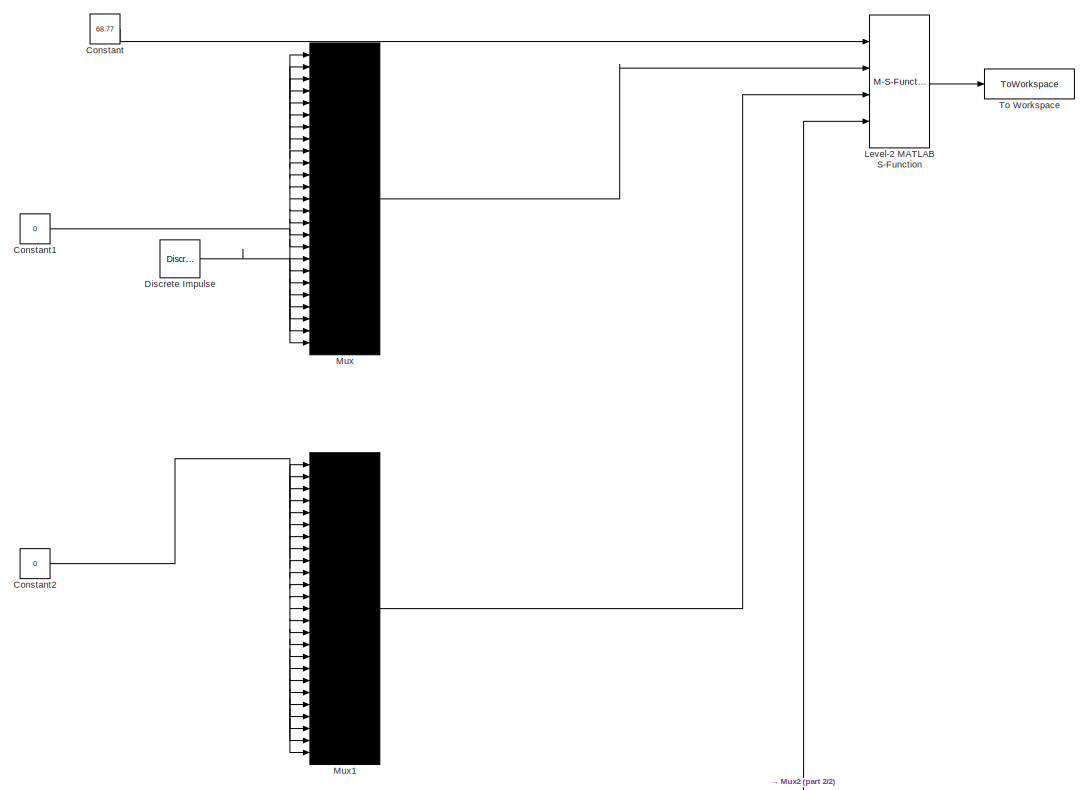
[diagram: root canvas - part 1/2, full width, middle band]
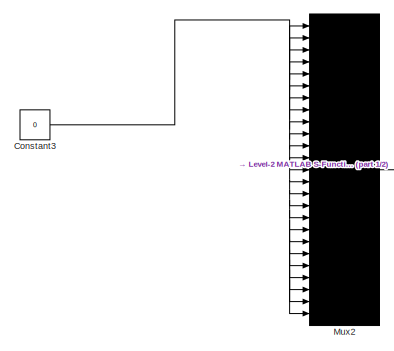
[diagram: root canvas - part 2/2, bottom left region]
MODEL slx_36253713f525
KIND model
CONFIG AbsTol = auto
CONFIG EnableMultiTasking = off
CONFIG FixedStep = auto
CONFIG MaxStep = auto
CONFIG MinStep = auto
CONFIG RelTol = 1e-3
CONFIG SampleTimeConstraint = Unconstrained
CONFIG Solver = VariableStepAuto
CONFIG SolverName = VariableStepAuto
CONFIG StartTime = 0.0
CONFIG StopTime = 10
BLOCK [Constant] Constant
  Value = 68.77
BLOCK [Constant] Constant1
  Value = 0
BLOCK [Constant] Constant2
  Value = 0
BLOCK [Constant] Constant3
  Value = 0
BLOCK [Reference] Discrete Impulse  REF=dspsrcs4/Discrete 
Impulse
  Ports = [0, 1]
  SourceBlock = dspsrcs4/Discrete \nImpulse
  SourceProductBaseCode = DS
  SourceProductName = DSP System Toolbox
  SourceType = Discrete Impulse
BLOCK [M-S-Function] Level-2 MATLAB S-Function
  FunctionName = corde2
  Parameters = 0.00325, 0.44, 0
  Ports = [4, 1]
BLOCK [Mux] Mux
  DisplayOption = bar
  Inputs = 25
  Ports = [25, 1]
BLOCK [Mux] Mux1
  DisplayOption = bar
  Inputs = 25
  Ports = [25, 1]
BLOCK [Mux] Mux2
  DisplayOption = bar
  Inputs = 25
  Ports = [25, 1]
BLOCK [ToWorkspace] To Workspace
  FixptAsFi = on
  MaxDataPoints = inf
  Ports = [1]
  SampleTime = 0.0005
  SaveFormat = Timeseries
  VariableName = corde_mesure
NET Constant1:1 -> Mux:1, Mux:10, Mux:11, Mux:12, Mux:13, Mux:14, Mux:15, Mux:16, Mux:17, Mux:19, Mux:2, Mux:20, Mux:21, Mux:22, Mux:23, Mux:24, Mux:25, Mux:3, Mux:4, Mux:5, Mux:6, Mux:7, Mux:8, Mux:9
NET Constant2:1 -> Mux1:1, Mux1:10, Mux1:11, Mux1:12, Mux1:13, Mux1:14, Mux1:15, Mux1:16, Mux1:17, Mux1:18, Mux1:19, Mux1:2, Mux1:20, Mux1:21, Mux1:22, Mux1:23, Mux1:24, Mux1:25, Mux1:3, Mux1:4, Mux1:5, Mux1:6, Mux1:7, Mux1:8, Mux1:9
NET Constant3:1 -> Mux2:1, Mux2:10, Mux2:11, Mux2:12, Mux2:13, Mux2:14, Mux2:15, Mux2:16, Mux2:17, Mux2:18, Mux2:19, Mux2:2, Mux2:20, Mux2:21, Mux2:22, Mux2:23, Mux2:24, Mux2:25, Mux2:3, Mux2:4, Mux2:5, Mux2:6, Mux2:7, Mux2:8, Mux2:9
LINE Constant:1 -> Level-2 MATLAB S-Function:1
LINE Discrete Impulse:1 -> Mux:18
LINE Level-2 MATLAB S-Function:1 -> To Workspace:1
LINE Mux1:1 -> Level-2 MATLAB S-Function:3
LINE Mux2:1 -> Level-2 MATLAB S-Function:4
LINE Mux:1 -> Level-2 MATLAB S-Function:2
note: NET lines group one-source signal fan-out (src -> all destinations, sorted); 1:1 wires keep LINE
